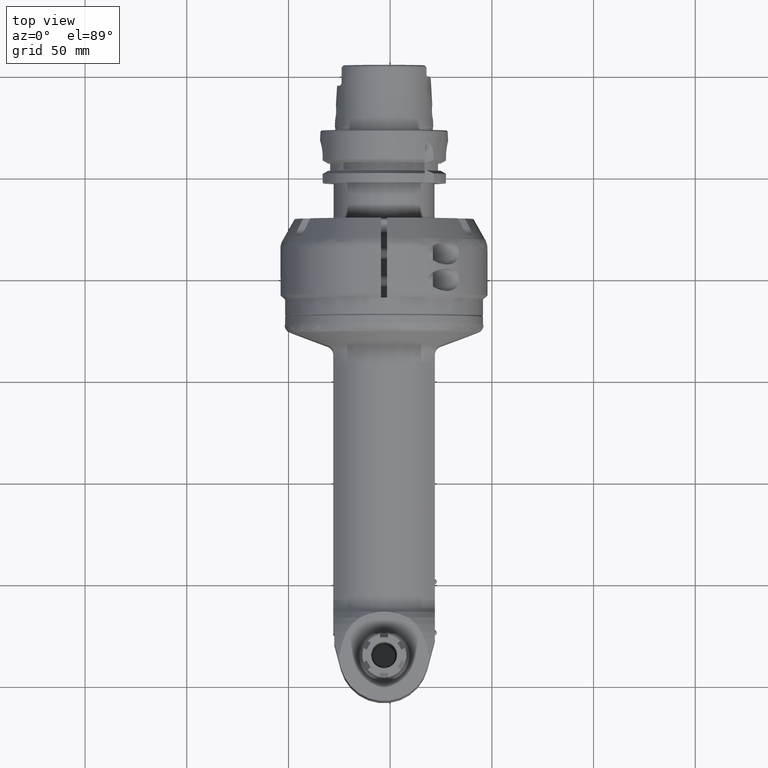
[diagram: clean part render]
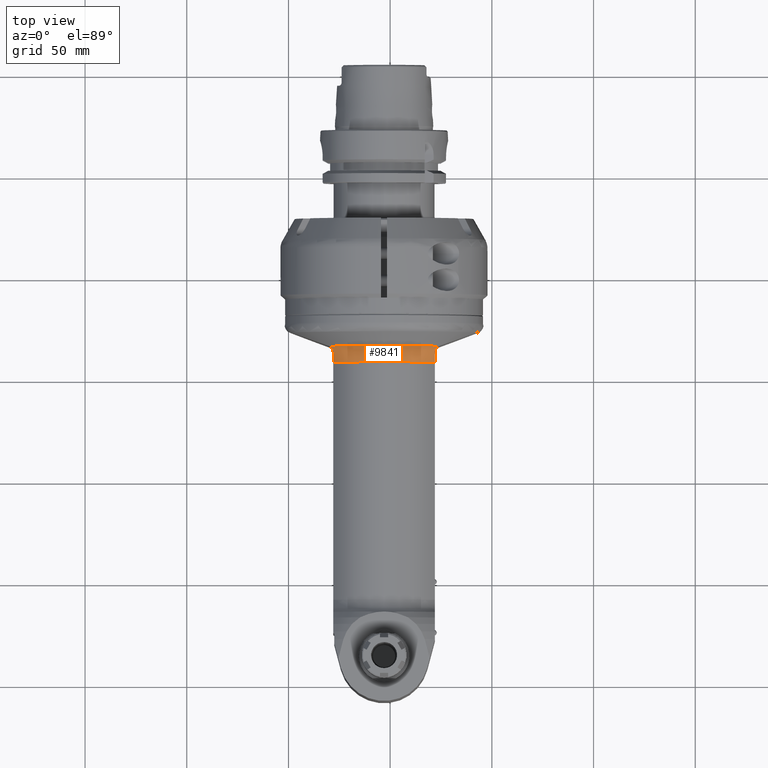
[diagram: same view with one face highlighted and labeled with its STEP entity id]
A machine part, top view. The second image highlights one B-rep face of the part: STEP entity #9841.
In plain terms, the highlighted toroidal blend (fillet) surface has major radius 39 mm and minor (blend) radius 9 mm.
Its self-contained STEP definition (entity closure, byte-faithful):
#45=TOROIDAL_SURFACE('',#10555,39.,9.);
#204=B_SPLINE_CURVE_WITH_KNOTS('',3,(#14654,#14655,#14656,#14657,#14658,
#14659,#14660,#14661),.UNSPECIFIED.,.F.,.F.,(4,2,2,4),(-3.60467441945762,
-3.42534326197877,-3.27591971172755,-3.1423743118532),.UNSPECIFIED.);
#207=B_SPLINE_CURVE_WITH_KNOTS('',3,(#14702,#14703,#14704,#14705,#14706,
#14707,#14708,#14709,#14710,#14711),.UNSPECIFIED.,.F.,.F.,(4,2,2,2,4),(3.59658856200368,
3.626598651154,3.73684578082548,3.89042704673215,3.98683363644303),
 .UNSPECIFIED.);
#218=B_SPLINE_CURVE_WITH_KNOTS('',3,(#15015,#15016,#15017,#15018,#15019,
#15020,#15021,#15022),.UNSPECIFIED.,.F.,.F.,(4,2,2,4),(-3.1423743118532,
-3.00882891197885,-2.85940536172763,-2.68007420423704),.UNSPECIFIED.);
#220=B_SPLINE_CURVE_WITH_KNOTS('',3,(#15073,#15074,#15075,#15076,#15077,
#15078,#15079,#15080,#15081,#15082),.UNSPECIFIED.,.F.,.F.,(4,2,2,2,4),(6.12835446152519,
6.27608158426437,6.47340065522146,6.58447781945239,6.59385884260671),
 .UNSPECIFIED.);
#937=FACE_OUTER_BOUND('',#1540,.T.);
#1540=EDGE_LOOP('',(#6854,#6855,#6856,#6857,#6858,#6859));
#3617=CIRCLE('',#10553,34.5);
#3619=CIRCLE('',#10556,30.);
#4081=VERTEX_POINT('',#14580);
#4093=VERTEX_POINT('',#14652);
#4105=VERTEX_POINT('',#14701);
#4154=VERTEX_POINT('',#15012);
#4155=VERTEX_POINT('',#15014);
#4171=VERTEX_POINT('',#15064);
#5101=EDGE_CURVE('',#4081,#4093,#204,.T.);
#5113=EDGE_CURVE('',#4105,#4081,#207,.T.);
#5196=EDGE_CURVE('',#4155,#4154,#218,.T.);
#5215=EDGE_CURVE('',#4154,#4171,#220,.T.);
#5218=EDGE_CURVE('',#4171,#4105,#3617,.T.);
#5220=EDGE_CURVE('',#4093,#4155,#3619,.T.);
#6854=ORIENTED_EDGE('',*,*,#5220,.T.);
#6855=ORIENTED_EDGE('',*,*,#5196,.T.);
#6856=ORIENTED_EDGE('',*,*,#5215,.T.);
#6857=ORIENTED_EDGE('',*,*,#5218,.T.);
#6858=ORIENTED_EDGE('',*,*,#5113,.T.);
#6859=ORIENTED_EDGE('',*,*,#5101,.T.);
#9841=ADVANCED_FACE('',(#937),#45,.F.);
#10553=AXIS2_PLACEMENT_3D('',#15097,#11816,#11817);
#10555=AXIS2_PLACEMENT_3D('',#15099,#11820,#11821);
#10556=AXIS2_PLACEMENT_3D('',#15100,#11822,#11823);
#11816=DIRECTION('center_axis',(1.,0.,0.));
#11817=DIRECTION('ref_axis',(0.,1.,0.));
#11820=DIRECTION('center_axis',(-1.,0.,0.));
#11821=DIRECTION('ref_axis',(0.,1.,0.));
#11822=DIRECTION('center_axis',(-1.,0.,0.));
#11823=DIRECTION('ref_axis',(0.,0.552770798392605,0.833333333333308));
#14580=CARTESIAN_POINT('',(30.80083019725,18.54823604153,25.00000000002));
#14652=CARTESIAN_POINT('',(35.16580758197,16.58312395178,25.));
#14654=CARTESIAN_POINT('Ctrl Pts',(30.8008301972676,18.5482360415489,25.));
#14655=CARTESIAN_POINT('Ctrl Pts',(31.2768824717977,18.1051437660918,25.));
#14656=CARTESIAN_POINT('Ctrl Pts',(31.7927287077014,17.7134498027754,25.));
#14657=CARTESIAN_POINT('Ctrl Pts',(32.7382766269785,17.1595326432425,25.));
#14658=CARTESIAN_POINT('Ctrl Pts',(33.2844305992261,16.9167277905047,25.));
#14659=CARTESIAN_POINT('Ctrl Pts',(34.1920196550243,16.6598919965139,25.));
#14660=CARTESIAN_POINT('Ctrl Pts',(34.7206562490555,16.583123951777,25.));
#14661=CARTESIAN_POINT('Ctrl Pts',(35.16580758197,16.583123951777,25.));
#14701=CARTESIAN_POINT('',(27.37157894791,21.55092563191,26.94081669898));
#14702=CARTESIAN_POINT('Ctrl Pts',(27.3715789479101,21.5509256319022,26.9408166989833));
#14703=CARTESIAN_POINT('Ctrl Pts',(27.4208401335489,21.5168900372257,26.8587798145909));
#14704=CARTESIAN_POINT('Ctrl Pts',(27.4721031814979,21.4782962654301,26.780109144326));
#14705=CARTESIAN_POINT('Ctrl Pts',(27.7169404273542,21.2852548148026,26.4305321262483));
#14706=CARTESIAN_POINT('Ctrl Pts',(27.957239957263,21.0717129154018,26.1620004341281));
#14707=CARTESIAN_POINT('Ctrl Pts',(28.6466925231098,20.4603252622379,25.5894490369276));
#14708=CARTESIAN_POINT('Ctrl Pts',(29.146148630939,20.0224758800897,25.310399910167));
#14709=CARTESIAN_POINT('Ctrl Pts',(30.0745482205176,19.2074224565487,25.0489408116181));
#14710=CARTESIAN_POINT('Ctrl Pts',(30.4392827280834,18.8847513768685,25.000000000021));
#14711=CARTESIAN_POINT('Ctrl Pts',(30.8008301972676,18.5482360415489,25.));
#15012=CARTESIAN_POINT('',(30.80083019715,18.54823604161,-25.00000000003));
#15014=CARTESIAN_POINT('',(35.16580758197,16.58312395178,-25.));
#15015=CARTESIAN_POINT('Ctrl Pts',(35.16580758197,16.583123951777,-25.));
#15016=CARTESIAN_POINT('Ctrl Pts',(34.7206562490555,16.583123951777,-25.));
#15017=CARTESIAN_POINT('Ctrl Pts',(34.1920196550243,16.6598919965139,-25.));
#15018=CARTESIAN_POINT('Ctrl Pts',(33.2844305992261,16.9167277905047,-25.));
#15019=CARTESIAN_POINT('Ctrl Pts',(32.7382766269785,17.1595326432425,-25.));
#15020=CARTESIAN_POINT('Ctrl Pts',(31.7927287076676,17.7134498027952,-25.));
#15021=CARTESIAN_POINT('Ctrl Pts',(31.2768824717304,18.1051437661434,-25.));
#15022=CARTESIAN_POINT('Ctrl Pts',(30.8008301971741,18.5482360416359,-25.));
#15064=CARTESIAN_POINT('',(27.37157894783,21.55092563201,-26.94081669909));
#15073=CARTESIAN_POINT('Ctrl Pts',(30.8008301971741,18.5482360416359,-25.));
#15074=CARTESIAN_POINT('Ctrl Pts',(30.3182108618744,18.9974407001974,-25.0000000000393));
#15075=CARTESIAN_POINT('Ctrl Pts',(29.838113870618,19.4155756279309,-25.0874310035346));
#15076=CARTESIAN_POINT('Ctrl Pts',(28.7791301612323,20.3425970007356,-25.4883017427968));
#15077=CARTESIAN_POINT('Ctrl Pts',(28.2887044363587,20.7807655001039,-25.8431255043232));
#15078=CARTESIAN_POINT('Ctrl Pts',(27.7176933102887,21.2805222853818,-26.4344728475636));
#15079=CARTESIAN_POINT('Ctrl Pts',(27.5472100386126,21.4250404392724,-26.6581350807559));
#15080=CARTESIAN_POINT('Ctrl Pts',(27.3949674920741,21.5345874428688,-26.9022390042993));
#15081=CARTESIAN_POINT('Ctrl Pts',(27.3832154279588,21.5428857418097,-26.9214379415256));
#15082=CARTESIAN_POINT('Ctrl Pts',(27.3715789478319,21.5509256319562,-26.9408166991135));
#15097=CARTESIAN_POINT('Origin',(27.37157894791,0.,0.));
#15099=CARTESIAN_POINT('Origin',(35.16580758197,0.,0.));
#15100=CARTESIAN_POINT('Origin',(35.16580758197,0.,0.));